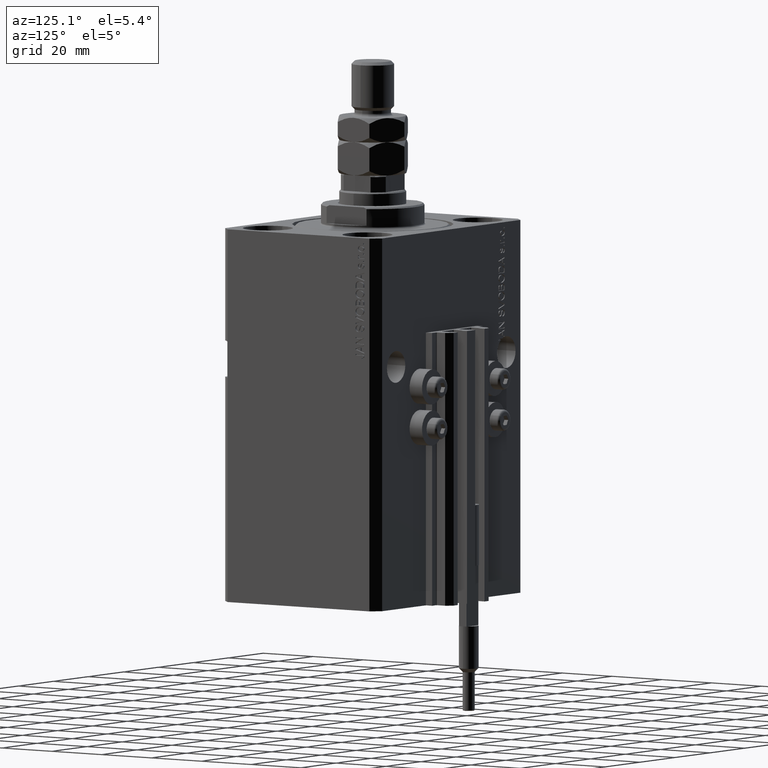
[diagram: clean part render]
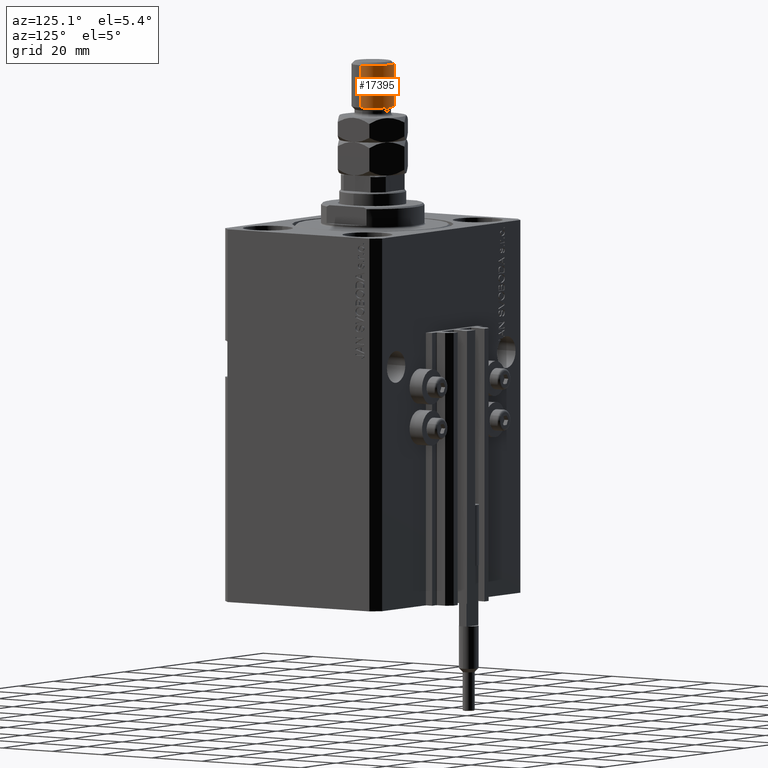
[diagram: same view with one face highlighted and labeled with its STEP entity id]
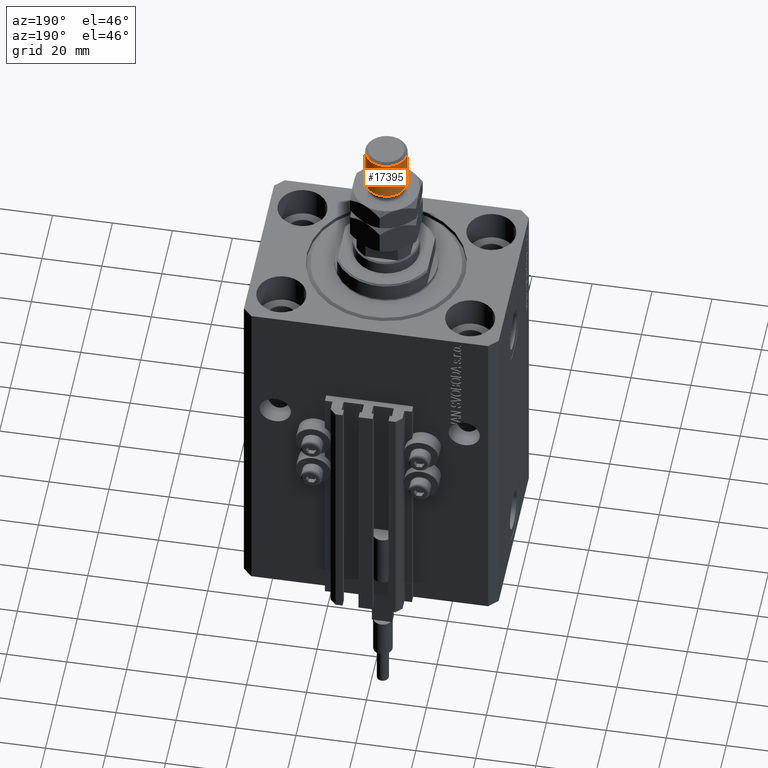
[diagram: same view with one face highlighted and labeled with its STEP entity id]
A machine part, auxiliary view. The second image highlights one B-rep face of the part: STEP entity #17395.
A second angle (auxiliary view) of the same face is appended — the face is thin or edge-on in the first view.
In plain terms, the highlighted cylindrical surface (edge-blend (fillet) strip) has radius 7 mm, axis along (-0, -0, -1).
Its self-contained STEP definition (entity closure, byte-faithful):
#101 = ORIENTED_EDGE ( 'NONE', *, *, #6620, .T. ) ;
#1683 = CARTESIAN_POINT ( 'NONE',  ( 0.000000000000000000, 0.000000000000000000, 37.00000000000000000 ) ) ;
#2402 = CIRCLE ( 'NONE', #22563, 7.000000000000000000 ) ;
#4257 = VECTOR ( 'NONE', #38209, 1000.000000000000000 ) ;
#4503 = VECTOR ( 'NONE', #37514, 1000.000000000000000 ) ;
#5232 = DIRECTION ( 'NONE',  ( 0.000000000000000000, 0.000000000000000000, -1.000000000000000000 ) ) ;
#6162 = ORIENTED_EDGE ( 'NONE', *, *, #16986, .F. ) ;
#6620 = EDGE_CURVE ( 'NONE', #40186, #46592, #26478, .T. ) ;
#7386 = LINE ( 'NONE', #22575, #4257 ) ;
#11145 = AXIS2_PLACEMENT_3D ( 'NONE', #31548, #5232, #19921 ) ;
#14042 = CARTESIAN_POINT ( 'NONE',  ( 7.000000000000000000, 8.572527594031473190E-16, 37.00000000000000000 ) ) ;
#16986 = EDGE_CURVE ( 'NONE', #40186, #39978, #7386, .T. ) ;
#17395 = ADVANCED_FACE ( 'NONE', ( #18889 ), #34301, .T. ) ;
#18178 = DIRECTION ( 'NONE',  ( 1.000000000000000000, 0.000000000000000000, 0.000000000000000000 ) ) ;
#18823 = LINE ( 'NONE', #14042, #4503 ) ;
#18889 = FACE_OUTER_BOUND ( 'NONE', #21189, .T. ) ;
#19921 = DIRECTION ( 'NONE',  ( 1.000000000000000000, 0.000000000000000000, 0.000000000000000000 ) ) ;
#21189 = EDGE_LOOP ( 'NONE', ( #101, #30166, #38171, #6162 ) ) ;
#22563 = AXIS2_PLACEMENT_3D ( 'NONE', #25271, #29556, #18178 ) ;
#22575 = CARTESIAN_POINT ( 'NONE',  ( -7.000000000000000000, 0.000000000000000000, 37.00000000000000000 ) ) ;
#24065 = CARTESIAN_POINT ( 'NONE',  ( -7.000000000000000000, 0.000000000000000000, 35.99999999999999289 ) ) ;
#25271 = CARTESIAN_POINT ( 'NONE',  ( 0.000000000000000000, 0.000000000000000000, 22.00000000000000355 ) ) ;
#26478 = CIRCLE ( 'NONE', #11145, 7.000000000000000000 ) ;
#27328 = CARTESIAN_POINT ( 'NONE',  ( 7.000000000000000000, 8.572527594031473190E-16, 22.00000000000000355 ) ) ;
#28766 = EDGE_CURVE ( 'NONE', #46592, #49235, #18823, .T. ) ;
#29556 = DIRECTION ( 'NONE',  ( -0.000000000000000000, -0.000000000000000000, 1.000000000000000000 ) ) ;
#30166 = ORIENTED_EDGE ( 'NONE', *, *, #28766, .T. ) ;
#31548 = CARTESIAN_POINT ( 'NONE',  ( 0.000000000000000000, 0.000000000000000000, 35.99999999999999289 ) ) ;
#32256 = DIRECTION ( 'NONE',  ( -1.000000000000000000, 0.000000000000000000, 0.000000000000000000 ) ) ;
#34301 = CYLINDRICAL_SURFACE ( 'NONE', #46230, 7.000000000000000000 ) ;
#36530 = DIRECTION ( 'NONE',  ( -0.000000000000000000, -0.000000000000000000, -1.000000000000000000 ) ) ;
#37514 = DIRECTION ( 'NONE',  ( -0.000000000000000000, -0.000000000000000000, -1.000000000000000000 ) ) ;
#38171 = ORIENTED_EDGE ( 'NONE', *, *, #43873, .T. ) ;
#38209 = DIRECTION ( 'NONE',  ( -0.000000000000000000, -0.000000000000000000, -1.000000000000000000 ) ) ;
#39776 = CARTESIAN_POINT ( 'NONE',  ( -7.000000000000000000, 0.000000000000000000, 22.00000000000000355 ) ) ;
#39978 = VERTEX_POINT ( 'NONE', #39776 ) ;
#40186 = VERTEX_POINT ( 'NONE', #24065 ) ;
#42419 = CARTESIAN_POINT ( 'NONE',  ( 7.000000000000000000, 8.572527594031473190E-16, 35.99999999999999289 ) ) ;
#43873 = EDGE_CURVE ( 'NONE', #49235, #39978, #2402, .T. ) ;
#46230 = AXIS2_PLACEMENT_3D ( 'NONE', #1683, #36530, #32256 ) ;
#46592 = VERTEX_POINT ( 'NONE', #42419 ) ;
#49235 = VERTEX_POINT ( 'NONE', #27328 ) ;